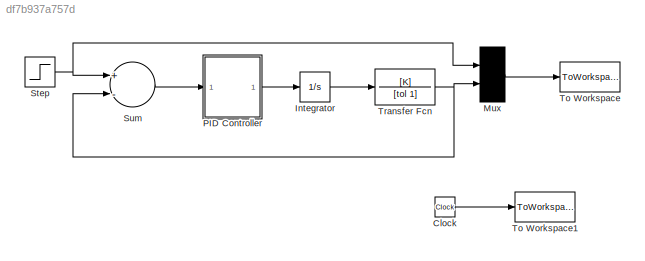
MODEL slx_df7b937a757d
KIND model
CONFIG AbsTol = auto
CONFIG FixedStep = auto
CONFIG MaxStep = auto
CONFIG MinStep = auto
CONFIG RelTol = 1e-3
CONFIG SampleTimeConstraint = Unconstrained
CONFIG Solver = VariableStepAuto
CONFIG SolverMode = Auto
CONFIG SolverName = VariableStepAuto
CONFIG StartTime = 0.0
CONFIG StopTime = 10.0
BLOCK [Clock] Clock
BLOCK [Integrator] Integrator
  Ports = [1, 1]
BLOCK [Mux] Mux
  Inputs = 2
  Ports = [2, 1]
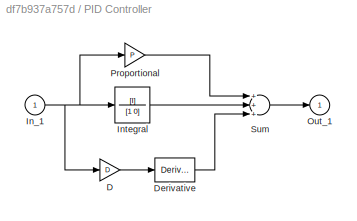
BLOCK [SubSystem] PID Controller
  Ports = [1, 1]
  RequestExecContextInheritance = off
  Variant = off
BLOCK [Gain] PID Controller/D
  Gain = D
BLOCK [Derivative] PID Controller/Derivative
BLOCK [Inport] PID Controller/In_1
  IconDisplay = Port number
BLOCK [TransferFcn] PID Controller/Integral
  Denominator = [1 0]
  Numerator = [I]
BLOCK [Outport] PID Controller/Out_1
  IconDisplay = Port number
  InitialOutput = 0
BLOCK [Gain] PID Controller/Proportional
  Gain = P
BLOCK [Sum] PID Controller/Sum
  Inputs = +++
  Ports = [3, 1]
BLOCK [Step] Step
  SampleTime = 0
  Time = 0
BLOCK [Sum] Sum
  InputSameDT = off
  Inputs = +-
  OutDataTypeStr = Inherit: Inherit via internal rule
  Ports = [2, 1]
  SaturateOnIntegerOverflow = off
BLOCK [ToWorkspace] To Workspace
  FixptAsFi = on
  MaxDataPoints = inf
  Ports = [1]
  SampleTime = -1
  Save2DSignal = 2-D array (concatenate along first dimension)
  VariableName = y
BLOCK [ToWorkspace] To Workspace1
  FixptAsFi = on
  MaxDataPoints = inf
  Ports = [1]
  SampleTime = -1
  Save2DSignal = 2-D array (concatenate along first dimension)
  VariableName = t
BLOCK [TransferFcn] Transfer Fcn
  Denominator = [tol 1]
  Numerator = [K]
LINE Clock:1 -> To Workspace1:1
LINE Integrator:1 -> Transfer Fcn:1
LINE Mux:1 -> To Workspace:1
LINE PID Controller/D:1 -> PID Controller/Derivative:1
LINE PID Controller/Derivative:1 -> PID Controller/Sum:3
NET PID Controller/In_1:1 -> PID Controller/D:1, PID Controller/Integral:1, PID Controller/Proportional:1
LINE PID Controller/Integral:1 -> PID Controller/Sum:2
LINE PID Controller/Proportional:1 -> PID Controller/Sum:1
LINE PID Controller/Sum:1 -> PID Controller/Out_1:1
LINE PID Controller:1 -> Integrator:1
NET Step:1 -> Mux:1, Sum:1
LINE Sum:1 -> PID Controller:1
NET Transfer Fcn:1 -> Mux:2, Sum:2
note: NET lines group one-source signal fan-out (src -> all destinations, sorted); 1:1 wires keep LINE
